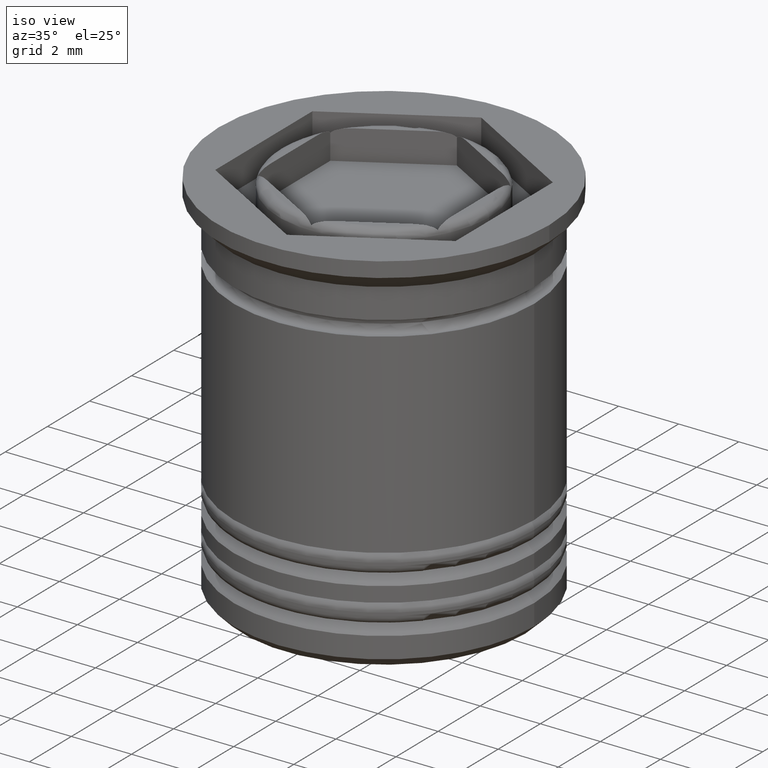
[diagram: clean part render]
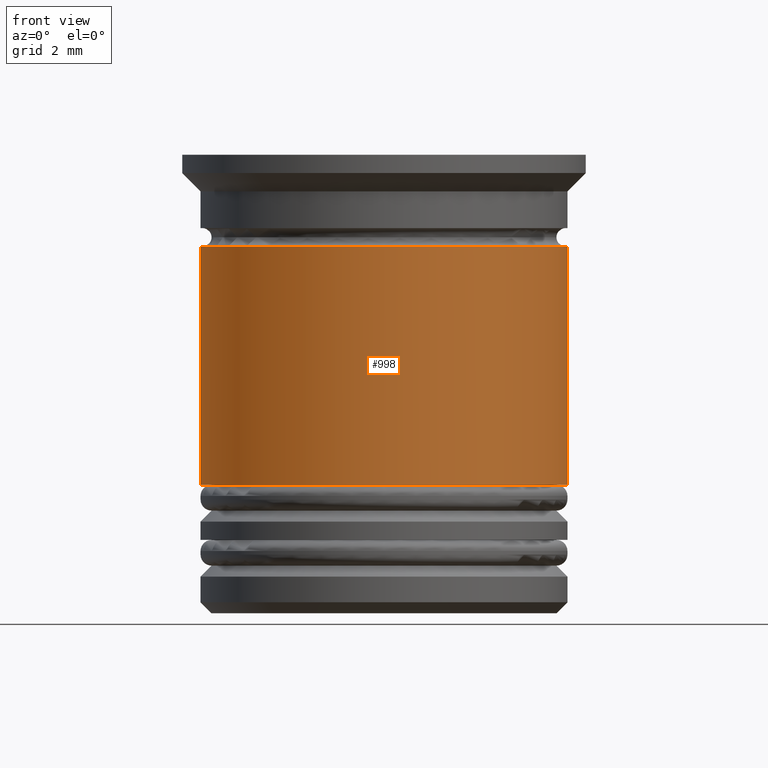
[diagram: tour spotlight — one face highlighted and labeled with its STEP entity id]
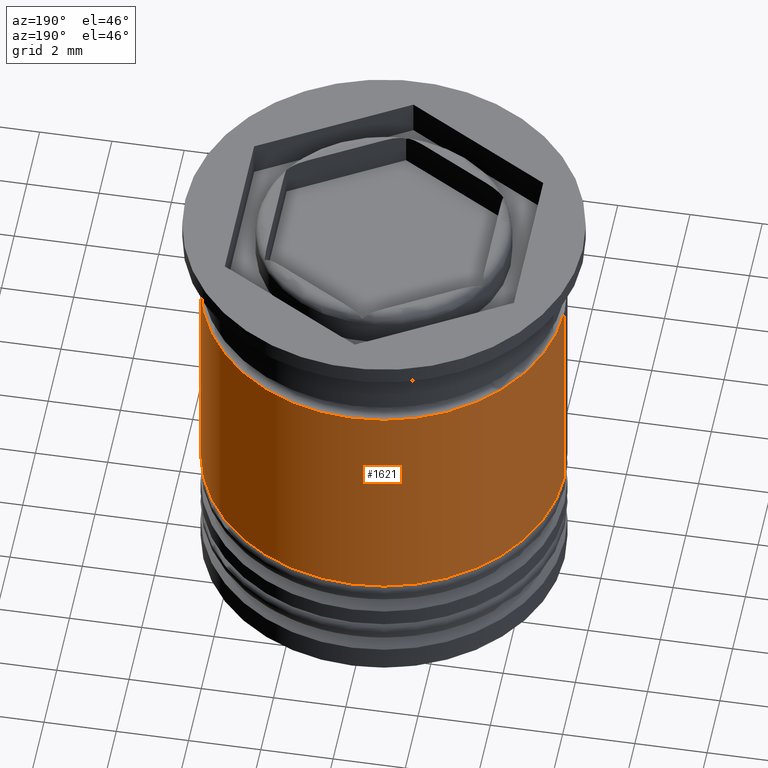
[diagram: tour spotlight — one face highlighted and labeled with its STEP entity id]
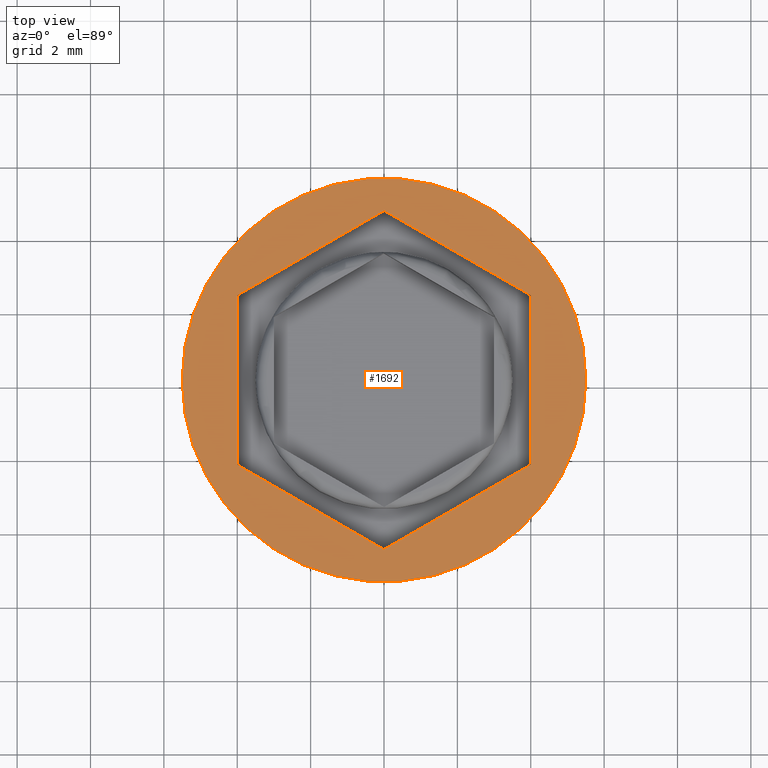
[diagram: tour spotlight — one face highlighted and labeled with its STEP entity id]
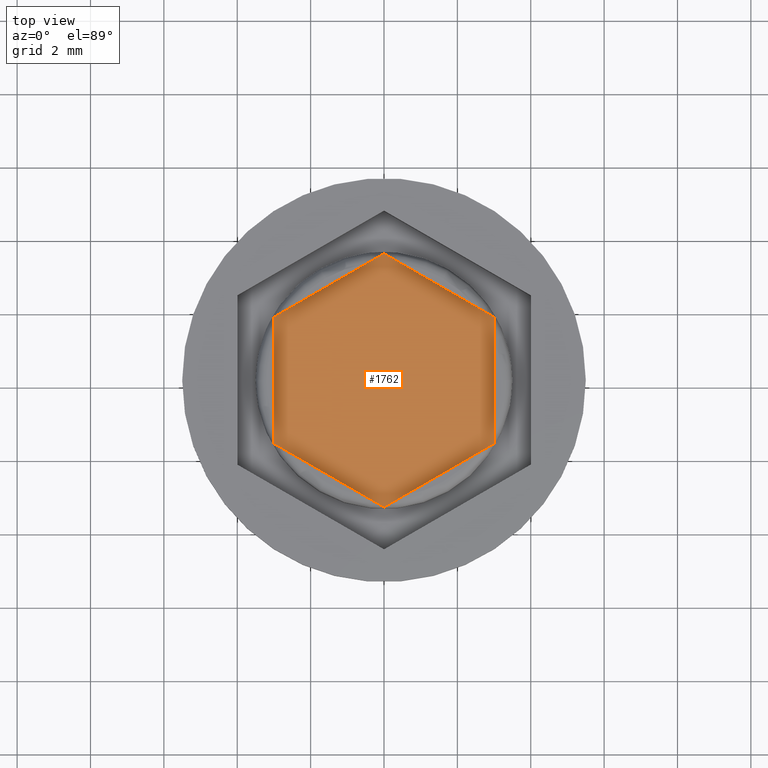
[diagram: tour spotlight — one face highlighted and labeled with its STEP entity id]
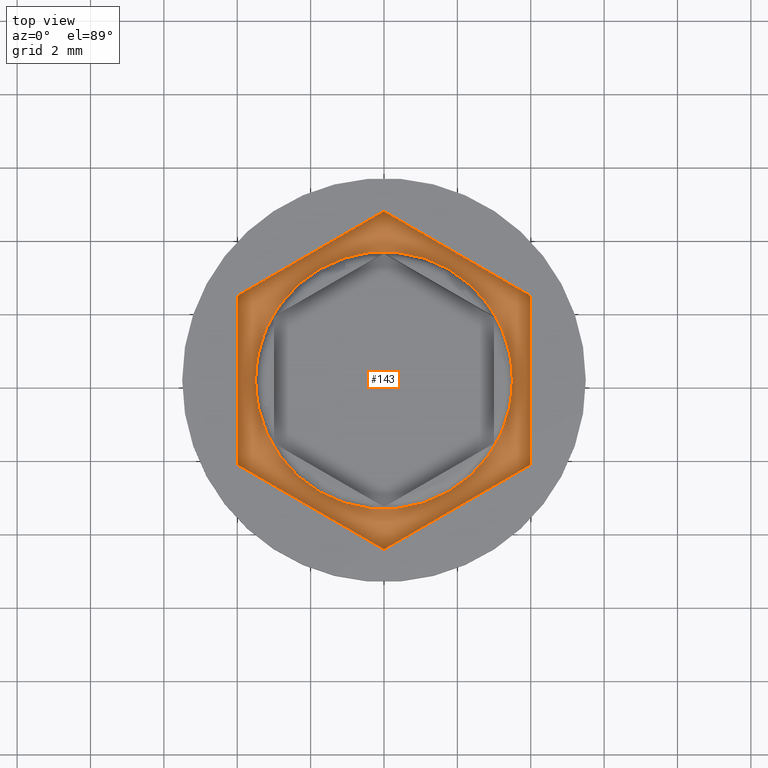
[diagram: tour spotlight — one face highlighted and labeled with its STEP entity id]
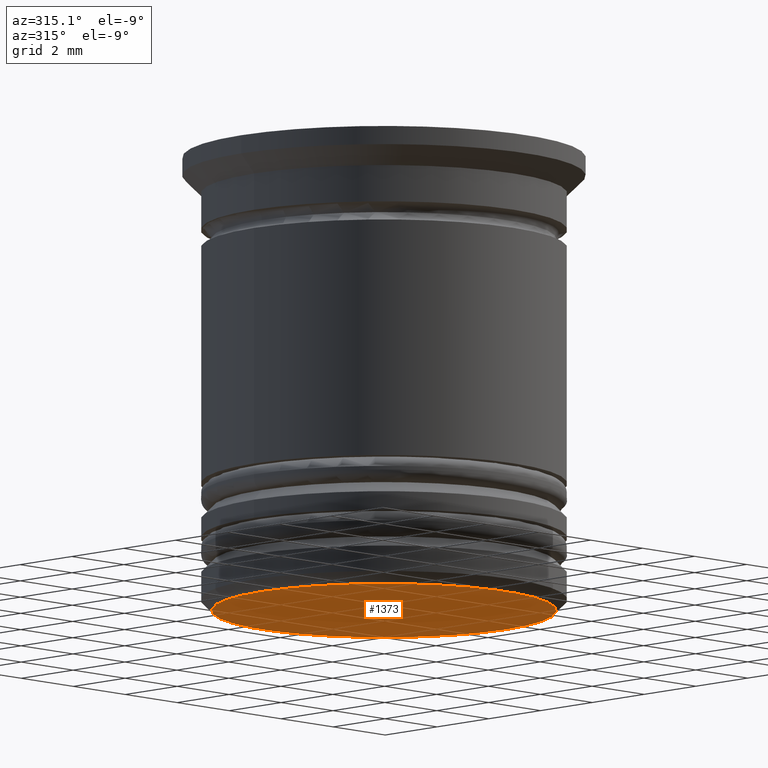
[diagram: tour spotlight — one face highlighted and labeled with its STEP entity id]
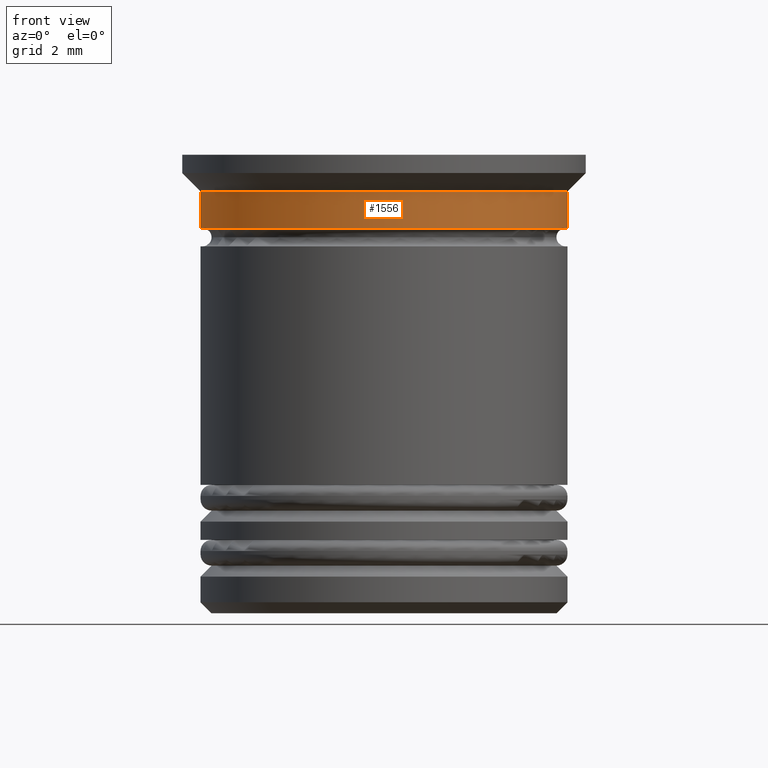
[diagram: tour spotlight — one face highlighted and labeled with its STEP entity id]
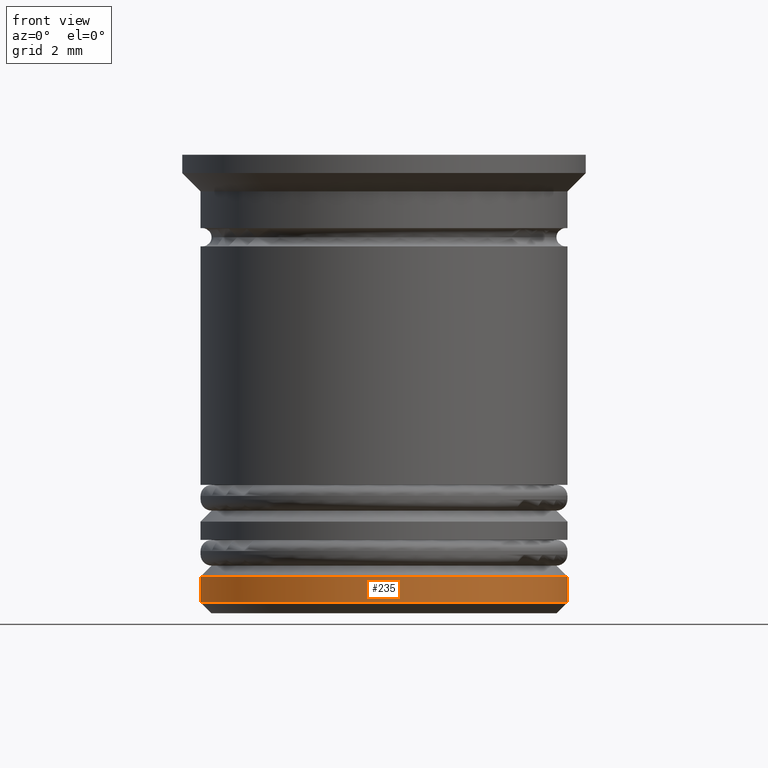
[diagram: tour spotlight — one face highlighted and labeled with its STEP entity id]
A machine part: a face-by-face anatomy tour. The part has 72 B-rep faces; the first image is the clean iso view, then the 8 largest visible faces are spotlighted one at a time (largest first), each with its STEP entity span.

Face 1 — front view, entity #998. In plain terms, the highlighted cylindrical surface (partial cylindrical patch) has radius 5 mm, axis along (-0, -0, 1).
Definition (entity closure, byte-faithful):
#46 = EDGE_CURVE ( 'NONE', #1212, #247, #1413, .T. ) ;
#76 = EDGE_CURVE ( 'NONE', #807, #1379, #301, .T. ) ;
#113 = CARTESIAN_POINT ( 'NONE',  ( 5.000000000000000000, 0.000000000000000000, 0.000000000000000000 ) ) ;
#170 = CYLINDRICAL_SURFACE ( 'NONE', #1221, 5.000000000000000000 ) ;
#179 = CARTESIAN_POINT ( 'NONE',  ( 4.999999999999999112, 0.000000000000000000, -2.500000000000000000 ) ) ;
#247 = VERTEX_POINT ( 'NONE', #179 ) ;
#301 = LINE ( 'NONE', #950, #399 ) ;
#399 = VECTOR ( 'NONE', #789, 1000.000000000000000 ) ;
#418 = ORIENTED_EDGE ( 'NONE', *, *, #46, .T. ) ;
#436 = AXIS2_PLACEMENT_3D ( 'NONE', #1783, #1129, #810 ) ;
#575 = CARTESIAN_POINT ( 'NONE',  ( 0.000000000000000000, 0.000000000000000000, -2.500000000000000000 ) ) ;
#651 = DIRECTION ( 'NONE',  ( -0.000000000000000000, -0.000000000000000000, 1.000000000000000000 ) ) ;
#702 = DIRECTION ( 'NONE',  ( -0.000000000000000000, -0.000000000000000000, 1.000000000000000000 ) ) ;
#727 = ORIENTED_EDGE ( 'NONE', *, *, #1068, .F. ) ;
#740 = EDGE_LOOP ( 'NONE', ( #1998, #951, #418, #727 ) ) ;
#763 = CARTESIAN_POINT ( 'NONE',  ( 5.000000000000000888, 0.000000000000000000, -9.000000000000001776 ) ) ;
#789 = DIRECTION ( 'NONE',  ( -0.000000000000000000, -0.000000000000000000, 1.000000000000000000 ) ) ;
#801 = CIRCLE ( 'NONE', #1978, 4.999999999999999112 ) ;
#802 = CARTESIAN_POINT ( 'NONE',  ( -4.999999999999999112, 6.123233995736766282E-16, -2.500000000000000000 ) ) ;
#807 = VERTEX_POINT ( 'NONE', #2030 ) ;
#810 = DIRECTION ( 'NONE',  ( 1.000000000000000000, 0.000000000000000000, 0.000000000000000000 ) ) ;
#822 = DIRECTION ( 'NONE',  ( 1.000000000000000000, 0.000000000000000000, 0.000000000000000000 ) ) ;
#832 = VECTOR ( 'NONE', #1404, 1000.000000000000000 ) ;
#950 = CARTESIAN_POINT ( 'NONE',  ( -5.000000000000000000, 6.123233995736766282E-16, 0.000000000000000000 ) ) ;
#951 = ORIENTED_EDGE ( 'NONE', *, *, #1794, .T. ) ;
#998 = ADVANCED_FACE ( 'NONE', ( #1293 ), #170, .T. ) ;
#1068 = EDGE_CURVE ( 'NONE', #1379, #247, #801, .T. ) ;
#1129 = DIRECTION ( 'NONE',  ( -0.000000000000000000, -0.000000000000000000, 1.000000000000000000 ) ) ;
#1212 = VERTEX_POINT ( 'NONE', #763 ) ;
#1221 = AXIS2_PLACEMENT_3D ( 'NONE', #1926, #651, #822 ) ;
#1293 = FACE_OUTER_BOUND ( 'NONE', #740, .T. ) ;
#1351 = CIRCLE ( 'NONE', #436, 5.000000000000000888 ) ;
#1379 = VERTEX_POINT ( 'NONE', #802 ) ;
#1404 = DIRECTION ( 'NONE',  ( -0.000000000000000000, -0.000000000000000000, 1.000000000000000000 ) ) ;
#1413 = LINE ( 'NONE', #113, #832 ) ;
#1669 = DIRECTION ( 'NONE',  ( 1.000000000000000000, 0.000000000000000000, 0.000000000000000000 ) ) ;
#1783 = CARTESIAN_POINT ( 'NONE',  ( 0.000000000000000000, 0.000000000000000000, -9.000000000000001776 ) ) ;
#1794 = EDGE_CURVE ( 'NONE', #807, #1212, #1351, .T. ) ;
#1926 = CARTESIAN_POINT ( 'NONE',  ( 0.000000000000000000, 0.000000000000000000, 0.000000000000000000 ) ) ;
#1978 = AXIS2_PLACEMENT_3D ( 'NONE', #575, #702, #1669 ) ;
#1998 = ORIENTED_EDGE ( 'NONE', *, *, #76, .F. ) ;
#2030 = CARTESIAN_POINT ( 'NONE',  ( -5.000000000000000888, 6.123233995736767268E-16, -9.000000000000001776 ) ) ;

Face 2 — auxiliary view, entity #1621. In plain terms, the highlighted cylindrical surface (partial cylindrical patch) has radius 5 mm, axis along (-0, -0, 1).
Definition (entity closure, byte-faithful):
#46 = EDGE_CURVE ( 'NONE', #1212, #247, #1413, .T. ) ;
#76 = EDGE_CURVE ( 'NONE', #807, #1379, #301, .T. ) ;
#113 = CARTESIAN_POINT ( 'NONE',  ( 5.000000000000000000, 0.000000000000000000, 0.000000000000000000 ) ) ;
#179 = CARTESIAN_POINT ( 'NONE',  ( 4.999999999999999112, 0.000000000000000000, -2.500000000000000000 ) ) ;
#189 = CIRCLE ( 'NONE', #1583, 4.999999999999999112 ) ;
#247 = VERTEX_POINT ( 'NONE', #179 ) ;
#285 = DIRECTION ( 'NONE',  ( -0.000000000000000000, -0.000000000000000000, 1.000000000000000000 ) ) ;
#301 = LINE ( 'NONE', #950, #399 ) ;
#399 = VECTOR ( 'NONE', #789, 1000.000000000000000 ) ;
#522 = ORIENTED_EDGE ( 'NONE', *, *, #76, .T. ) ;
#650 = DIRECTION ( 'NONE',  ( 1.000000000000000000, 0.000000000000000000, 0.000000000000000000 ) ) ;
#763 = CARTESIAN_POINT ( 'NONE',  ( 5.000000000000000888, 0.000000000000000000, -9.000000000000001776 ) ) ;
#789 = DIRECTION ( 'NONE',  ( -0.000000000000000000, -0.000000000000000000, 1.000000000000000000 ) ) ;
#802 = CARTESIAN_POINT ( 'NONE',  ( -4.999999999999999112, 6.123233995736766282E-16, -2.500000000000000000 ) ) ;
#807 = VERTEX_POINT ( 'NONE', #2030 ) ;
#832 = VECTOR ( 'NONE', #1404, 1000.000000000000000 ) ;
#841 = AXIS2_PLACEMENT_3D ( 'NONE', #1273, #285, #1721 ) ;
#877 = AXIS2_PLACEMENT_3D ( 'NONE', #970, #1461, #650 ) ;
#931 = DIRECTION ( 'NONE',  ( 1.000000000000000000, 0.000000000000000000, 0.000000000000000000 ) ) ;
#950 = CARTESIAN_POINT ( 'NONE',  ( -5.000000000000000000, 6.123233995736766282E-16, 0.000000000000000000 ) ) ;
#970 = CARTESIAN_POINT ( 'NONE',  ( 0.000000000000000000, 0.000000000000000000, -9.000000000000001776 ) ) ;
#1191 = EDGE_CURVE ( 'NONE', #247, #1379, #189, .T. ) ;
#1212 = VERTEX_POINT ( 'NONE', #763 ) ;
#1237 = FACE_OUTER_BOUND ( 'NONE', #1984, .T. ) ;
#1270 = ORIENTED_EDGE ( 'NONE', *, *, #1341, .T. ) ;
#1273 = CARTESIAN_POINT ( 'NONE',  ( 0.000000000000000000, 0.000000000000000000, 0.000000000000000000 ) ) ;
#1341 = EDGE_CURVE ( 'NONE', #1212, #807, #1747, .T. ) ;
#1379 = VERTEX_POINT ( 'NONE', #802 ) ;
#1394 = CYLINDRICAL_SURFACE ( 'NONE', #841, 5.000000000000000000 ) ;
#1404 = DIRECTION ( 'NONE',  ( -0.000000000000000000, -0.000000000000000000, 1.000000000000000000 ) ) ;
#1408 = DIRECTION ( 'NONE',  ( -0.000000000000000000, -0.000000000000000000, 1.000000000000000000 ) ) ;
#1413 = LINE ( 'NONE', #113, #832 ) ;
#1461 = DIRECTION ( 'NONE',  ( -0.000000000000000000, -0.000000000000000000, 1.000000000000000000 ) ) ;
#1484 = ORIENTED_EDGE ( 'NONE', *, *, #1191, .F. ) ;
#1583 = AXIS2_PLACEMENT_3D ( 'NONE', #2020, #1408, #931 ) ;
#1621 = ADVANCED_FACE ( 'NONE', ( #1237 ), #1394, .T. ) ;
#1721 = DIRECTION ( 'NONE',  ( 1.000000000000000000, 0.000000000000000000, 0.000000000000000000 ) ) ;
#1724 = ORIENTED_EDGE ( 'NONE', *, *, #46, .F. ) ;
#1747 = CIRCLE ( 'NONE', #877, 5.000000000000000888 ) ;
#1984 = EDGE_LOOP ( 'NONE', ( #1270, #522, #1484, #1724 ) ) ;
#2020 = CARTESIAN_POINT ( 'NONE',  ( 0.000000000000000000, 0.000000000000000000, -2.500000000000000000 ) ) ;
#2030 = CARTESIAN_POINT ( 'NONE',  ( -5.000000000000000888, 6.123233995736767268E-16, -9.000000000000001776 ) ) ;

Face 3 — top view, entity #1692. In plain terms, the highlighted planar face has unit normal (0, -0, 1).
Definition (entity closure, byte-faithful):
#43 = ORIENTED_EDGE ( 'NONE', *, *, #1426, .F. ) ;
#54 = DIRECTION ( 'NONE',  ( 0.8660254037844385966, 0.4999999999999999445, 0.000000000000000000 ) ) ;
#79 = DIRECTION ( 'NONE',  ( 0.000000000000000000, -1.000000000000000000, 0.000000000000000000 ) ) ;
#109 = LINE ( 'NONE', #1398, #461 ) ;
#148 = PLANE ( 'NONE',  #1014 ) ;
#151 = EDGE_CURVE ( 'NONE', #1922, #916, #109, .T. ) ;
#177 = VERTEX_POINT ( 'NONE', #932 ) ;
#225 = CARTESIAN_POINT ( 'NONE',  ( 8.334195073742550113E-16, -4.618802153517005848, 0.000000000000000000 ) ) ;
#230 = CIRCLE ( 'NONE', #398, 5.500000000000000000 ) ;
#241 = CARTESIAN_POINT ( 'NONE',  ( -4.000000000000000000, 2.309401076758501592, 0.000000000000000000 ) ) ;
#260 = ORIENTED_EDGE ( 'NONE', *, *, #1371, .F. ) ;
#347 = ORIENTED_EDGE ( 'NONE', *, *, #151, .F. ) ;
#387 = EDGE_CURVE ( 'NONE', #796, #177, #1534, .T. ) ;
#398 = AXIS2_PLACEMENT_3D ( 'NONE', #1824, #894, #1348 ) ;
#430 = VECTOR ( 'NONE', #1062, 1000.000000000000227 ) ;
#461 = VECTOR ( 'NONE', #2021, 1000.000000000000227 ) ;
#469 = DIRECTION ( 'NONE',  ( -0.000000000000000000, -0.000000000000000000, 1.000000000000000000 ) ) ;
#484 = VERTEX_POINT ( 'NONE', #1640 ) ;
#489 = FACE_BOUND ( 'NONE', #1839, .T. ) ;
#493 = VECTOR ( 'NONE', #1742, 1000.000000000000000 ) ;
#505 = FACE_OUTER_BOUND ( 'NONE', #840, .T. ) ;
#510 = ORIENTED_EDGE ( 'NONE', *, *, #673, .F. ) ;
#577 = CARTESIAN_POINT ( 'NONE',  ( -4.000000000000000000, -2.309401076758503368, 0.000000000000000000 ) ) ;
#673 = EDGE_CURVE ( 'NONE', #916, #735, #708, .T. ) ;
#703 = VERTEX_POINT ( 'NONE', #577 ) ;
#708 = LINE ( 'NONE', #874, #430 ) ;
#711 = AXIS2_PLACEMENT_3D ( 'NONE', #1425, #469, #964 ) ;
#735 = VERTEX_POINT ( 'NONE', #1838 ) ;
#796 = VERTEX_POINT ( 'NONE', #1580 ) ;
#840 = EDGE_LOOP ( 'NONE', ( #1193, #1636 ) ) ;
#874 = CARTESIAN_POINT ( 'NONE',  ( 0.000000000000000000, 4.618802153517004960, 0.000000000000000000 ) ) ;
#894 = DIRECTION ( 'NONE',  ( -0.000000000000000000, -0.000000000000000000, 1.000000000000000000 ) ) ;
#900 = EDGE_CURVE ( 'NONE', #177, #1922, #1276, .T. ) ;
#916 = VERTEX_POINT ( 'NONE', #963 ) ;
#932 = CARTESIAN_POINT ( 'NONE',  ( 4.000000000000000000, -2.309401076758502924, 0.000000000000000000 ) ) ;
#943 = ORIENTED_EDGE ( 'NONE', *, *, #387, .F. ) ;
#963 = CARTESIAN_POINT ( 'NONE',  ( 0.000000000000000000, 4.618802153517004960, 0.000000000000000000 ) ) ;
#964 = DIRECTION ( 'NONE',  ( 1.000000000000000000, 0.000000000000000000, 0.000000000000000000 ) ) ;
#1014 = AXIS2_PLACEMENT_3D ( 'NONE', #1632, #1916, #1291 ) ;
#1016 = CIRCLE ( 'NONE', #711, 5.500000000000000000 ) ;
#1062 = DIRECTION ( 'NONE',  ( -0.8660254037844385966, -0.5000000000000000000, 0.000000000000000000 ) ) ;
#1065 = EDGE_CURVE ( 'NONE', #484, #1215, #230, .T. ) ;
#1169 = DIRECTION ( 'NONE',  ( 0.8660254037844387076, -0.4999999999999997780, 0.000000000000000000 ) ) ;
#1193 = ORIENTED_EDGE ( 'NONE', *, *, #2074, .T. ) ;
#1215 = VERTEX_POINT ( 'NONE', #1894 ) ;
#1222 = ORIENTED_EDGE ( 'NONE', *, *, #900, .F. ) ;
#1235 = CARTESIAN_POINT ( 'NONE',  ( 4.000000000000000000, 2.309401076758502924, 0.000000000000000000 ) ) ;
#1276 = LINE ( 'NONE', #2053, #493 ) ;
#1291 = DIRECTION ( 'NONE',  ( 1.000000000000000000, 0.000000000000000000, 0.000000000000000000 ) ) ;
#1348 = DIRECTION ( 'NONE',  ( 1.000000000000000000, 0.000000000000000000, 0.000000000000000000 ) ) ;
#1371 = EDGE_CURVE ( 'NONE', #703, #796, #2077, .T. ) ;
#1398 = CARTESIAN_POINT ( 'NONE',  ( 4.000000000000000000, 2.309401076758502924, 0.000000000000000000 ) ) ;
#1425 = CARTESIAN_POINT ( 'NONE',  ( 0.000000000000000000, 0.000000000000000000, 0.000000000000000000 ) ) ;
#1426 = EDGE_CURVE ( 'NONE', #735, #703, #1482, .T. ) ;
#1482 = LINE ( 'NONE', #241, #1810 ) ;
#1534 = LINE ( 'NONE', #225, #2007 ) ;
#1580 = CARTESIAN_POINT ( 'NONE',  ( 8.334195073742550113E-16, -4.618802153517005848, 0.000000000000000000 ) ) ;
#1603 = CARTESIAN_POINT ( 'NONE',  ( -4.000000000000000000, -2.309401076758503368, 0.000000000000000000 ) ) ;
#1632 = CARTESIAN_POINT ( 'NONE',  ( 0.000000000000000000, 0.000000000000000000, 0.000000000000000000 ) ) ;
#1636 = ORIENTED_EDGE ( 'NONE', *, *, #1065, .T. ) ;
#1640 = CARTESIAN_POINT ( 'NONE',  ( -5.500000000000000000, 6.735557395310442023E-16, 0.000000000000000000 ) ) ;
#1692 = ADVANCED_FACE ( 'NONE', ( #489, #505 ), #148, .T. ) ;
#1742 = DIRECTION ( 'NONE',  ( 0.000000000000000000, 1.000000000000000000, 0.000000000000000000 ) ) ;
#1810 = VECTOR ( 'NONE', #79, 1000.000000000000000 ) ;
#1824 = CARTESIAN_POINT ( 'NONE',  ( 0.000000000000000000, 0.000000000000000000, 0.000000000000000000 ) ) ;
#1838 = CARTESIAN_POINT ( 'NONE',  ( -4.000000000000000000, 2.309401076758501592, 0.000000000000000000 ) ) ;
#1839 = EDGE_LOOP ( 'NONE', ( #347, #1222, #943, #260, #43, #510 ) ) ;
#1894 = CARTESIAN_POINT ( 'NONE',  ( 5.500000000000000000, 0.000000000000000000, 0.000000000000000000 ) ) ;
#1916 = DIRECTION ( 'NONE',  ( 0.000000000000000000, -0.000000000000000000, 1.000000000000000000 ) ) ;
#1922 = VERTEX_POINT ( 'NONE', #1235 ) ;
#2007 = VECTOR ( 'NONE', #54, 1000.000000000000114 ) ;
#2021 = DIRECTION ( 'NONE',  ( -0.8660254037844387076, 0.4999999999999997780, 0.000000000000000000 ) ) ;
#2039 = VECTOR ( 'NONE', #1169, 1000.000000000000114 ) ;
#2053 = CARTESIAN_POINT ( 'NONE',  ( 4.000000000000000000, -2.309401076758502924, 0.000000000000000000 ) ) ;
#2074 = EDGE_CURVE ( 'NONE', #1215, #484, #1016, .T. ) ;
#2077 = LINE ( 'NONE', #1603, #2039 ) ;

Face 4 — top view, entity #1762. In plain terms, the highlighted planar face has unit normal (0, 0, 1).
Definition (entity closure, byte-faithful):
#7 = FACE_OUTER_BOUND ( 'NONE', #312, .T. ) ;
#19 = EDGE_CURVE ( 'NONE', #555, #1149, #450, .T. ) ;
#63 = ORIENTED_EDGE ( 'NONE', *, *, #1139, .F. ) ;
#166 = DIRECTION ( 'NONE',  ( 0.000000000000000000, 0.000000000000000000, 1.000000000000000000 ) ) ;
#173 = EDGE_CURVE ( 'NONE', #1630, #1350, #1576, .T. ) ;
#184 = ORIENTED_EDGE ( 'NONE', *, *, #1918, .F. ) ;
#243 = CARTESIAN_POINT ( 'NONE',  ( -3.000000000000000000, -1.732050807568877637, -1.000000000000000888 ) ) ;
#281 = CARTESIAN_POINT ( 'NONE',  ( 3.000000000000001776, 1.732050807568877415, -1.000000000000000888 ) ) ;
#289 = CARTESIAN_POINT ( 'NONE',  ( -2.168404344971008868E-16, -3.464101615137754830, -1.000000000000000888 ) ) ;
#312 = EDGE_LOOP ( 'NONE', ( #1368, #1628, #184, #63, #1662, #1332 ) ) ;
#315 = PLANE ( 'NONE',  #1483 ) ;
#441 = DIRECTION ( 'NONE',  ( 0.8660254037844388186, -0.4999999999999998335, 0.000000000000000000 ) ) ;
#450 = LINE ( 'NONE', #281, #498 ) ;
#495 = LINE ( 'NONE', #1779, #1480 ) ;
#498 = VECTOR ( 'NONE', #441, 999.9999999999998863 ) ;
#555 = VERTEX_POINT ( 'NONE', #1490 ) ;
#574 = VECTOR ( 'NONE', #2025, 1000.000000000000000 ) ;
#640 = DIRECTION ( 'NONE',  ( 1.000000000000000000, 0.000000000000000000, -0.000000000000000000 ) ) ;
#839 = VECTOR ( 'NONE', #1947, 999.9999999999998863 ) ;
#924 = EDGE_CURVE ( 'NONE', #1149, #1630, #495, .T. ) ;
#1110 = VECTOR ( 'NONE', #1969, 999.9999999999998863 ) ;
#1124 = DIRECTION ( 'NONE',  ( -5.007715329123862780E-16, -1.000000000000000000, 0.000000000000000000 ) ) ;
#1130 = LINE ( 'NONE', #1311, #839 ) ;
#1139 = EDGE_CURVE ( 'NONE', #1350, #1608, #1220, .T. ) ;
#1149 = VERTEX_POINT ( 'NONE', #1814 ) ;
#1220 = LINE ( 'NONE', #243, #1110 ) ;
#1244 = CARTESIAN_POINT ( 'NONE',  ( -3.000000000000000000, 1.732050807568877859, -1.000000000000000888 ) ) ;
#1283 = CARTESIAN_POINT ( 'NONE',  ( 0.000000000000000000, 0.000000000000000000, -1.000000000000000000 ) ) ;
#1311 = CARTESIAN_POINT ( 'NONE',  ( -2.168404344971008868E-16, 3.464101615137754830, -1.000000000000000888 ) ) ;
#1332 = ORIENTED_EDGE ( 'NONE', *, *, #924, .F. ) ;
#1350 = VERTEX_POINT ( 'NONE', #2066 ) ;
#1368 = ORIENTED_EDGE ( 'NONE', *, *, #19, .F. ) ;
#1378 = EDGE_CURVE ( 'NONE', #1806, #555, #1130, .T. ) ;
#1387 = CARTESIAN_POINT ( 'NONE',  ( 3.000000000000000888, -1.732050807568877415, -1.000000000000000888 ) ) ;
#1480 = VECTOR ( 'NONE', #1124, 1000.000000000000000 ) ;
#1483 = AXIS2_PLACEMENT_3D ( 'NONE', #1283, #166, #640 ) ;
#1490 = CARTESIAN_POINT ( 'NONE',  ( -2.168404344971008868E-16, 3.464101615137754830, -1.000000000000000888 ) ) ;
#1562 = LINE ( 'NONE', #1244, #574 ) ;
#1576 = LINE ( 'NONE', #289, #1906 ) ;
#1608 = VERTEX_POINT ( 'NONE', #2034 ) ;
#1628 = ORIENTED_EDGE ( 'NONE', *, *, #1378, .F. ) ;
#1630 = VERTEX_POINT ( 'NONE', #1387 ) ;
#1662 = ORIENTED_EDGE ( 'NONE', *, *, #173, .F. ) ;
#1738 = DIRECTION ( 'NONE',  ( -0.8660254037844387076, -0.4999999999999999445, 0.000000000000000000 ) ) ;
#1762 = ADVANCED_FACE ( 'NONE', ( #7 ), #315, .T. ) ;
#1779 = CARTESIAN_POINT ( 'NONE',  ( 3.000000000000000000, -1.732050807568878081, -1.000000000000000888 ) ) ;
#1806 = VERTEX_POINT ( 'NONE', #2084 ) ;
#1814 = CARTESIAN_POINT ( 'NONE',  ( 3.000000000000001776, 1.732050807568877193, -1.000000000000000888 ) ) ;
#1906 = VECTOR ( 'NONE', #1738, 999.9999999999998863 ) ;
#1918 = EDGE_CURVE ( 'NONE', #1608, #1806, #1562, .T. ) ;
#1947 = DIRECTION ( 'NONE',  ( 0.8660254037844387076, 0.4999999999999999445, -0.000000000000000000 ) ) ;
#1969 = DIRECTION ( 'NONE',  ( -0.8660254037844387076, 0.4999999999999999445, 0.000000000000000000 ) ) ;
#2025 = DIRECTION ( 'NONE',  ( 0.000000000000000000, 1.000000000000000000, 0.000000000000000000 ) ) ;
#2034 = CARTESIAN_POINT ( 'NONE',  ( -3.000000000000000000, -1.732050807568877415, -1.000000000000000888 ) ) ;
#2066 = CARTESIAN_POINT ( 'NONE',  ( -4.336808689942017736E-16, -3.464101615137754386, -1.000000000000000888 ) ) ;
#2084 = CARTESIAN_POINT ( 'NONE',  ( -3.000000000000000000, 1.732050807568877859, -1.000000000000000888 ) ) ;

Face 5 — top view, entity #143. In plain terms, the highlighted planar face has unit normal (0, 0, 1).
Definition (entity closure, byte-faithful):
#5 = DIRECTION ( 'NONE',  ( -0.8660254037844387076, 0.4999999999999997780, 0.000000000000000000 ) ) ;
#73 = FACE_BOUND ( 'NONE', #988, .T. ) ;
#110 = VERTEX_POINT ( 'NONE', #1684 ) ;
#122 = CARTESIAN_POINT ( 'NONE',  ( 3.500000000000000444, 4.286263797015737088E-16, -1.000000000000000000 ) ) ;
#143 = ADVANCED_FACE ( 'NONE', ( #73, #255 ), #1183, .T. ) ;
#255 = FACE_OUTER_BOUND ( 'NONE', #791, .T. ) ;
#262 = VECTOR ( 'NONE', #5, 1000.000000000000227 ) ;
#266 = VECTOR ( 'NONE', #1612, 1000.000000000000114 ) ;
#273 = ORIENTED_EDGE ( 'NONE', *, *, #585, .T. ) ;
#283 = ORIENTED_EDGE ( 'NONE', *, *, #1741, .T. ) ;
#344 = LINE ( 'NONE', #629, #266 ) ;
#373 = CARTESIAN_POINT ( 'NONE',  ( -4.000000000000000000, 2.309401076758501592, -1.000000000000000000 ) ) ;
#410 = VERTEX_POINT ( 'NONE', #704 ) ;
#479 = VERTEX_POINT ( 'NONE', #1792 ) ;
#492 = AXIS2_PLACEMENT_3D ( 'NONE', #1305, #696, #979 ) ;
#529 = EDGE_CURVE ( 'NONE', #410, #1857, #1137, .T. ) ;
#551 = EDGE_CURVE ( 'NONE', #1857, #1498, #671, .T. ) ;
#560 = EDGE_CURVE ( 'NONE', #479, #1654, #1607, .T. ) ;
#585 = EDGE_CURVE ( 'NONE', #588, #110, #646, .T. ) ;
#588 = VERTEX_POINT ( 'NONE', #817 ) ;
#609 = EDGE_CURVE ( 'NONE', #1498, #1241, #1655, .T. ) ;
#620 = EDGE_CURVE ( 'NONE', #1654, #479, #1677, .T. ) ;
#629 = CARTESIAN_POINT ( 'NONE',  ( -4.000000000000000000, -2.309401076758503368, -1.000000000000000000 ) ) ;
#646 = LINE ( 'NONE', #373, #1543 ) ;
#655 = CARTESIAN_POINT ( 'NONE',  ( 0.000000000000000000, 0.000000000000000000, -1.000000000000000000 ) ) ;
#671 = LINE ( 'NONE', #1320, #834 ) ;
#696 = DIRECTION ( 'NONE',  ( 0.000000000000000000, 0.000000000000000000, 1.000000000000000000 ) ) ;
#704 = CARTESIAN_POINT ( 'NONE',  ( 8.334195073742550113E-16, -4.618802153517005848, -1.000000000000000000 ) ) ;
#791 = EDGE_LOOP ( 'NONE', ( #1486, #1663, #273, #283, #1995, #1161 ) ) ;
#817 = CARTESIAN_POINT ( 'NONE',  ( -4.000000000000000000, 2.309401076758501592, -1.000000000000000000 ) ) ;
#834 = VECTOR ( 'NONE', #1954, 1000.000000000000000 ) ;
#873 = ORIENTED_EDGE ( 'NONE', *, *, #620, .F. ) ;
#918 = ORIENTED_EDGE ( 'NONE', *, *, #560, .F. ) ;
#979 = DIRECTION ( 'NONE',  ( 1.000000000000000000, 0.000000000000000000, 0.000000000000000000 ) ) ;
#988 = EDGE_LOOP ( 'NONE', ( #918, #873 ) ) ;
#990 = CARTESIAN_POINT ( 'NONE',  ( 8.334195073742550113E-16, -4.618802153517005848, -1.000000000000000000 ) ) ;
#1015 = DIRECTION ( 'NONE',  ( 0.000000000000000000, -1.000000000000000000, 0.000000000000000000 ) ) ;
#1066 = DIRECTION ( 'NONE',  ( -0.8660254037844385966, -0.5000000000000000000, 0.000000000000000000 ) ) ;
#1075 = CARTESIAN_POINT ( 'NONE',  ( 0.000000000000000000, 0.000000000000000000, -1.000000000000000000 ) ) ;
#1111 = VECTOR ( 'NONE', #1066, 1000.000000000000227 ) ;
#1137 = LINE ( 'NONE', #990, #1907 ) ;
#1161 = ORIENTED_EDGE ( 'NONE', *, *, #551, .T. ) ;
#1179 = CARTESIAN_POINT ( 'NONE',  ( 4.000000000000000000, 2.309401076758502924, -1.000000000000000000 ) ) ;
#1183 = PLANE ( 'NONE',  #1374 ) ;
#1241 = VERTEX_POINT ( 'NONE', #1422 ) ;
#1305 = CARTESIAN_POINT ( 'NONE',  ( 0.000000000000000000, 0.000000000000000000, -1.000000000000000000 ) ) ;
#1320 = CARTESIAN_POINT ( 'NONE',  ( 4.000000000000000000, -2.309401076758502924, -1.000000000000000000 ) ) ;
#1339 = DIRECTION ( 'NONE',  ( 0.000000000000000000, 0.000000000000000000, 1.000000000000000000 ) ) ;
#1374 = AXIS2_PLACEMENT_3D ( 'NONE', #1075, #1731, #1431 ) ;
#1422 = CARTESIAN_POINT ( 'NONE',  ( 0.000000000000000000, 4.618802153517004960, -1.000000000000000000 ) ) ;
#1431 = DIRECTION ( 'NONE',  ( 1.000000000000000000, 0.000000000000000000, -0.000000000000000000 ) ) ;
#1466 = CARTESIAN_POINT ( 'NONE',  ( 4.000000000000000000, 2.309401076758502924, -1.000000000000000000 ) ) ;
#1486 = ORIENTED_EDGE ( 'NONE', *, *, #609, .T. ) ;
#1498 = VERTEX_POINT ( 'NONE', #1179 ) ;
#1543 = VECTOR ( 'NONE', #1015, 1000.000000000000000 ) ;
#1587 = CARTESIAN_POINT ( 'NONE',  ( 0.000000000000000000, 4.618802153517004960, -1.000000000000000000 ) ) ;
#1607 = CIRCLE ( 'NONE', #492, 3.500000000000000444 ) ;
#1612 = DIRECTION ( 'NONE',  ( 0.8660254037844387076, -0.4999999999999997780, 0.000000000000000000 ) ) ;
#1629 = DIRECTION ( 'NONE',  ( 0.8660254037844385966, 0.4999999999999999445, 0.000000000000000000 ) ) ;
#1654 = VERTEX_POINT ( 'NONE', #122 ) ;
#1655 = LINE ( 'NONE', #1466, #262 ) ;
#1663 = ORIENTED_EDGE ( 'NONE', *, *, #1667, .T. ) ;
#1667 = EDGE_CURVE ( 'NONE', #1241, #588, #1736, .T. ) ;
#1677 = CIRCLE ( 'NONE', #1937, 3.500000000000000444 ) ;
#1684 = CARTESIAN_POINT ( 'NONE',  ( -4.000000000000000000, -2.309401076758503368, -1.000000000000000000 ) ) ;
#1731 = DIRECTION ( 'NONE',  ( 0.000000000000000000, 0.000000000000000000, 1.000000000000000000 ) ) ;
#1736 = LINE ( 'NONE', #1587, #1111 ) ;
#1741 = EDGE_CURVE ( 'NONE', #110, #410, #344, .T. ) ;
#1792 = CARTESIAN_POINT ( 'NONE',  ( -3.500000000000000444, 0.000000000000000000, -1.000000000000000000 ) ) ;
#1808 = CARTESIAN_POINT ( 'NONE',  ( 4.000000000000000000, -2.309401076758502924, -1.000000000000000000 ) ) ;
#1857 = VERTEX_POINT ( 'NONE', #1808 ) ;
#1907 = VECTOR ( 'NONE', #1629, 1000.000000000000114 ) ;
#1937 = AXIS2_PLACEMENT_3D ( 'NONE', #655, #1339, #1972 ) ;
#1954 = DIRECTION ( 'NONE',  ( 0.000000000000000000, 1.000000000000000000, 0.000000000000000000 ) ) ;
#1972 = DIRECTION ( 'NONE',  ( 1.000000000000000000, 0.000000000000000000, 0.000000000000000000 ) ) ;
#1995 = ORIENTED_EDGE ( 'NONE', *, *, #529, .T. ) ;

Face 6 — auxiliary view, entity #1373. In plain terms, the highlighted planar face has unit normal (0, 0, -1).
Definition (entity closure, byte-faithful):
#14 = AXIS2_PLACEMENT_3D ( 'NONE', #1989, #1031, #1976 ) ;
#23 = CIRCLE ( 'NONE', #1687, 4.699999999999999289 ) ;
#269 = ORIENTED_EDGE ( 'NONE', *, *, #310, .T. ) ;
#310 = EDGE_CURVE ( 'NONE', #645, #870, #1873, .T. ) ;
#486 = ORIENTED_EDGE ( 'NONE', *, *, #2010, .T. ) ;
#491 = FACE_OUTER_BOUND ( 'NONE', #1410, .T. ) ;
#636 = DIRECTION ( 'NONE',  ( 0.000000000000000000, 0.000000000000000000, -1.000000000000000000 ) ) ;
#645 = VERTEX_POINT ( 'NONE', #1213 ) ;
#870 = VERTEX_POINT ( 'NONE', #1269 ) ;
#961 = DIRECTION ( 'NONE',  ( -1.000000000000000000, 0.000000000000000000, -0.000000000000000000 ) ) ;
#1031 = DIRECTION ( 'NONE',  ( 0.000000000000000000, 0.000000000000000000, -1.000000000000000000 ) ) ;
#1095 = CARTESIAN_POINT ( 'NONE',  ( 0.000000000000000000, 0.000000000000000000, -12.50000000000000000 ) ) ;
#1145 = DIRECTION ( 'NONE',  ( 0.000000000000000000, 0.000000000000000000, -1.000000000000000000 ) ) ;
#1213 = CARTESIAN_POINT ( 'NONE',  ( -4.699999999999999289, 5.939536975864662969E-16, -12.50000000000000000 ) ) ;
#1269 = CARTESIAN_POINT ( 'NONE',  ( 4.699999999999999289, 0.000000000000000000, -12.50000000000000000 ) ) ;
#1277 = DIRECTION ( 'NONE',  ( -1.000000000000000000, 0.000000000000000000, 0.000000000000000000 ) ) ;
#1373 = ADVANCED_FACE ( 'NONE', ( #491 ), #1797, .T. ) ;
#1410 = EDGE_LOOP ( 'NONE', ( #486, #269 ) ) ;
#1446 = AXIS2_PLACEMENT_3D ( 'NONE', #1934, #1145, #961 ) ;
#1687 = AXIS2_PLACEMENT_3D ( 'NONE', #1095, #636, #1277 ) ;
#1797 = PLANE ( 'NONE',  #1446 ) ;
#1873 = CIRCLE ( 'NONE', #14, 4.699999999999999289 ) ;
#1934 = CARTESIAN_POINT ( 'NONE',  ( 0.000000000000000000, 5.000000000000000888, -12.50000000000000000 ) ) ;
#1976 = DIRECTION ( 'NONE',  ( -1.000000000000000000, 0.000000000000000000, 0.000000000000000000 ) ) ;
#1989 = CARTESIAN_POINT ( 'NONE',  ( 0.000000000000000000, 0.000000000000000000, -12.50000000000000000 ) ) ;
#2010 = EDGE_CURVE ( 'NONE', #870, #645, #23, .T. ) ;

Face 7 — front view, entity #1556. In plain terms, the highlighted cylindrical surface (partial cylindrical patch) has radius 5 mm, axis along (-0, -0, 1).
Definition (entity closure, byte-faithful):
#12 = CARTESIAN_POINT ( 'NONE',  ( 0.000000000000000000, 0.000000000000000000, -0.9999999999999997780 ) ) ;
#42 = CARTESIAN_POINT ( 'NONE',  ( -4.999999999999999112, 6.123233995736765296E-16, -0.9999999999999997780 ) ) ;
#60 = CIRCLE ( 'NONE', #1476, 4.999999999999999112 ) ;
#68 = VERTEX_POINT ( 'NONE', #1105 ) ;
#78 = EDGE_CURVE ( 'NONE', #615, #68, #60, .T. ) ;
#97 = CIRCLE ( 'NONE', #1313, 4.999999999999999112 ) ;
#157 = ORIENTED_EDGE ( 'NONE', *, *, #78, .F. ) ;
#158 = VECTOR ( 'NONE', #657, 1000.000000000000000 ) ;
#528 = DIRECTION ( 'NONE',  ( 1.000000000000000000, 0.000000000000000000, 0.000000000000000000 ) ) ;
#573 = CARTESIAN_POINT ( 'NONE',  ( 0.000000000000000000, 0.000000000000000000, -2.000000000000000444 ) ) ;
#603 = DIRECTION ( 'NONE',  ( 1.000000000000000000, 0.000000000000000000, 0.000000000000000000 ) ) ;
#615 = VERTEX_POINT ( 'NONE', #42 ) ;
#619 = DIRECTION ( 'NONE',  ( -0.000000000000000000, -0.000000000000000000, 1.000000000000000000 ) ) ;
#652 = ORIENTED_EDGE ( 'NONE', *, *, #1491, .T. ) ;
#657 = DIRECTION ( 'NONE',  ( -0.000000000000000000, -0.000000000000000000, 1.000000000000000000 ) ) ;
#700 = DIRECTION ( 'NONE',  ( -0.000000000000000000, -0.000000000000000000, 1.000000000000000000 ) ) ;
#773 = VECTOR ( 'NONE', #1948, 1000.000000000000000 ) ;
#792 = LINE ( 'NONE', #1933, #158 ) ;
#798 = CARTESIAN_POINT ( 'NONE',  ( 4.999999999999999112, 0.000000000000000000, -2.000000000000000444 ) ) ;
#837 = ORIENTED_EDGE ( 'NONE', *, *, #1005, .F. ) ;
#1005 = EDGE_CURVE ( 'NONE', #1549, #615, #1324, .T. ) ;
#1073 = FACE_OUTER_BOUND ( 'NONE', #1296, .T. ) ;
#1084 = CARTESIAN_POINT ( 'NONE',  ( 0.000000000000000000, 0.000000000000000000, 0.000000000000000000 ) ) ;
#1105 = CARTESIAN_POINT ( 'NONE',  ( 4.999999999999999112, 0.000000000000000000, -0.9999999999999997780 ) ) ;
#1133 = DIRECTION ( 'NONE',  ( -0.000000000000000000, -0.000000000000000000, 1.000000000000000000 ) ) ;
#1267 = CYLINDRICAL_SURFACE ( 'NONE', #1846, 4.999999999999999112 ) ;
#1296 = EDGE_LOOP ( 'NONE', ( #837, #652, #1421, #157 ) ) ;
#1313 = AXIS2_PLACEMENT_3D ( 'NONE', #573, #700, #528 ) ;
#1315 = CARTESIAN_POINT ( 'NONE',  ( -4.999999999999999112, 6.123233995736765296E-16, 0.000000000000000000 ) ) ;
#1324 = LINE ( 'NONE', #1315, #773 ) ;
#1421 = ORIENTED_EDGE ( 'NONE', *, *, #1745, .T. ) ;
#1476 = AXIS2_PLACEMENT_3D ( 'NONE', #12, #1133, #1949 ) ;
#1491 = EDGE_CURVE ( 'NONE', #1549, #1710, #97, .T. ) ;
#1549 = VERTEX_POINT ( 'NONE', #2019 ) ;
#1556 = ADVANCED_FACE ( 'NONE', ( #1073 ), #1267, .T. ) ;
#1710 = VERTEX_POINT ( 'NONE', #798 ) ;
#1745 = EDGE_CURVE ( 'NONE', #1710, #68, #792, .T. ) ;
#1846 = AXIS2_PLACEMENT_3D ( 'NONE', #1084, #619, #603 ) ;
#1933 = CARTESIAN_POINT ( 'NONE',  ( 4.999999999999999112, 0.000000000000000000, 0.000000000000000000 ) ) ;
#1948 = DIRECTION ( 'NONE',  ( -0.000000000000000000, -0.000000000000000000, 1.000000000000000000 ) ) ;
#1949 = DIRECTION ( 'NONE',  ( 1.000000000000000000, 0.000000000000000000, 0.000000000000000000 ) ) ;
#2019 = CARTESIAN_POINT ( 'NONE',  ( -4.999999999999999112, 6.123233995736765296E-16, -2.000000000000000444 ) ) ;

Face 8 — front view, entity #235. In plain terms, the highlighted cylindrical surface (partial cylindrical patch) has radius 5 mm, axis along (-0, -0, 1).
Definition (entity closure, byte-faithful):
#21 = CIRCLE ( 'NONE', #572, 5.000000000000000888 ) ;
#117 = VERTEX_POINT ( 'NONE', #244 ) ;
#224 = ORIENTED_EDGE ( 'NONE', *, *, #1281, .T. ) ;
#235 = ADVANCED_FACE ( 'NONE', ( #515 ), #1784, .T. ) ;
#244 = CARTESIAN_POINT ( 'NONE',  ( 5.000000000000000888, 0.000000000000000000, -11.50000000000000533 ) ) ;
#276 = DIRECTION ( 'NONE',  ( -0.000000000000000000, -0.000000000000000000, 1.000000000000000000 ) ) ;
#375 = EDGE_CURVE ( 'NONE', #117, #1272, #661, .T. ) ;
#394 = CARTESIAN_POINT ( 'NONE',  ( 0.000000000000000000, 0.000000000000000000, -11.50000000000000533 ) ) ;
#408 = DIRECTION ( 'NONE',  ( -0.000000000000000000, -0.000000000000000000, 1.000000000000000000 ) ) ;
#434 = CARTESIAN_POINT ( 'NONE',  ( 5.000000000000000888, 0.000000000000000000, 0.000000000000000000 ) ) ;
#463 = AXIS2_PLACEMENT_3D ( 'NONE', #1658, #1308, #992 ) ;
#515 = FACE_OUTER_BOUND ( 'NONE', #1836, .T. ) ;
#526 = CARTESIAN_POINT ( 'NONE',  ( -5.000000000000000888, 6.123233995736767268E-16, -12.19999999999999929 ) ) ;
#572 = AXIS2_PLACEMENT_3D ( 'NONE', #1109, #1773, #1154 ) ;
#654 = ORIENTED_EDGE ( 'NONE', *, *, #375, .T. ) ;
#661 = CIRCLE ( 'NONE', #770, 5.000000000000000888 ) ;
#692 = EDGE_CURVE ( 'NONE', #1851, #1272, #1985, .T. ) ;
#770 = AXIS2_PLACEMENT_3D ( 'NONE', #394, #1987, #1828 ) ;
#785 = LINE ( 'NONE', #434, #1225 ) ;
#890 = ORIENTED_EDGE ( 'NONE', *, *, #1729, .T. ) ;
#992 = DIRECTION ( 'NONE',  ( 1.000000000000000000, 0.000000000000000000, 0.000000000000000000 ) ) ;
#1109 = CARTESIAN_POINT ( 'NONE',  ( 0.000000000000000000, 0.000000000000000000, -12.19999999999999929 ) ) ;
#1154 = DIRECTION ( 'NONE',  ( -1.000000000000000000, 0.000000000000000000, 0.000000000000000000 ) ) ;
#1225 = VECTOR ( 'NONE', #276, 1000.000000000000000 ) ;
#1272 = VERTEX_POINT ( 'NONE', #1875 ) ;
#1281 = EDGE_CURVE ( 'NONE', #1303, #117, #785, .T. ) ;
#1303 = VERTEX_POINT ( 'NONE', #2085 ) ;
#1308 = DIRECTION ( 'NONE',  ( -0.000000000000000000, -0.000000000000000000, 1.000000000000000000 ) ) ;
#1361 = CARTESIAN_POINT ( 'NONE',  ( -5.000000000000000888, 6.123233995736767268E-16, 0.000000000000000000 ) ) ;
#1522 = ORIENTED_EDGE ( 'NONE', *, *, #692, .F. ) ;
#1658 = CARTESIAN_POINT ( 'NONE',  ( 0.000000000000000000, 0.000000000000000000, 0.000000000000000000 ) ) ;
#1729 = EDGE_CURVE ( 'NONE', #1851, #1303, #21, .T. ) ;
#1773 = DIRECTION ( 'NONE',  ( -0.000000000000000000, -0.000000000000000000, 1.000000000000000000 ) ) ;
#1784 = CYLINDRICAL_SURFACE ( 'NONE', #463, 5.000000000000000888 ) ;
#1807 = VECTOR ( 'NONE', #408, 1000.000000000000000 ) ;
#1828 = DIRECTION ( 'NONE',  ( -1.000000000000000000, 0.000000000000000000, 0.000000000000000000 ) ) ;
#1836 = EDGE_LOOP ( 'NONE', ( #1522, #890, #224, #654 ) ) ;
#1851 = VERTEX_POINT ( 'NONE', #526 ) ;
#1875 = CARTESIAN_POINT ( 'NONE',  ( -5.000000000000000888, 6.123233995736767268E-16, -11.50000000000000533 ) ) ;
#1985 = LINE ( 'NONE', #1361, #1807 ) ;
#1987 = DIRECTION ( 'NONE',  ( 0.000000000000000000, 0.000000000000000000, -1.000000000000000000 ) ) ;
#2085 = CARTESIAN_POINT ( 'NONE',  ( 5.000000000000000888, 0.000000000000000000, -12.19999999999999929 ) ) ;